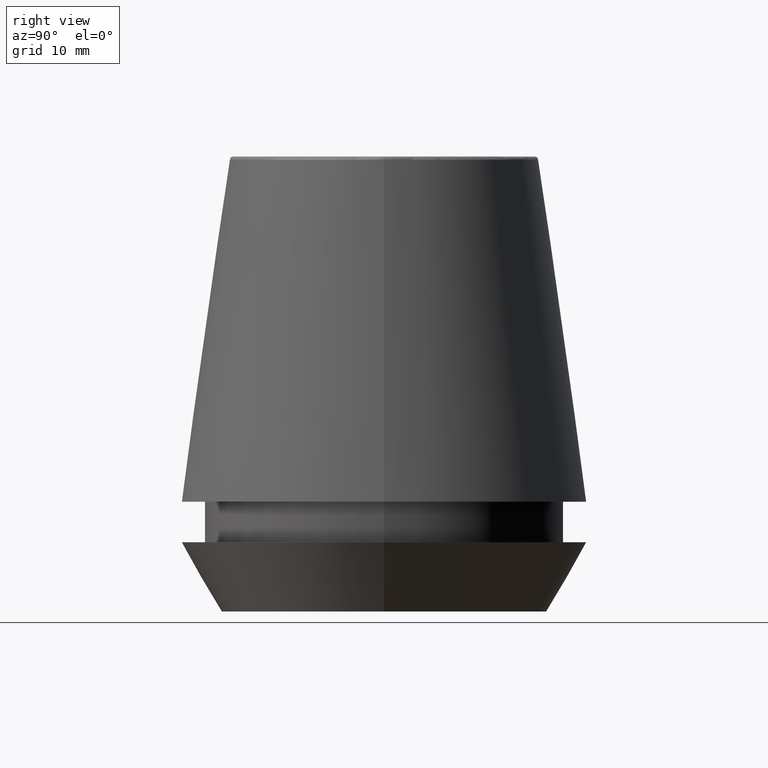
[diagram: clean part render]
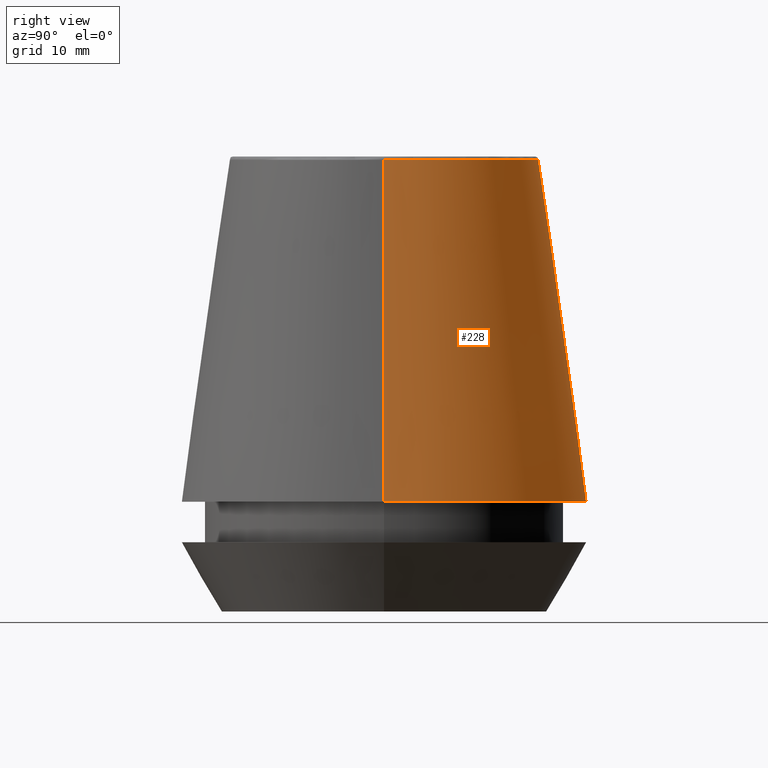
[diagram: same view with one face highlighted and labeled with its STEP entity id]
A machine part, right view. The second image highlights one B-rep face of the part: STEP entity #228.
In plain terms, the highlighted conical surface has half-angle 8 deg.
Its self-contained STEP definition (entity closure, byte-faithful):
#2 = CARTESIAN_POINT ( 'NONE',  ( -15.64384277279740400, 0.0000000000000000000, 45.65566924038402900 ) ) ;
#3 = ORIENTED_EDGE ( 'NONE', *, *, #72, .T. ) ;
#8 = CONICAL_SURFACE ( 'NONE', #11, 20.50032537154048700, 0.1396263401595396200 ) ;
#11 = AXIS2_PLACEMENT_3D ( 'NONE', #25, #240, #384 ) ;
#12 = VERTEX_POINT ( 'NONE', #321 ) ;
#25 = CARTESIAN_POINT ( 'NONE',  ( 0.0000000000000000000, 0.0000000000000000000, 11.09999999999999800 ) ) ;
#27 = DIRECTION ( 'NONE',  ( 1.000000000000000000, 0.0000000000000000000, 0.0000000000000000000 ) ) ;
#37 = AXIS2_PLACEMENT_3D ( 'NONE', #56, #244, #27 ) ;
#38 = CIRCLE ( 'NONE', #111, 20.50032537154048700 ) ;
#48 = EDGE_CURVE ( 'NONE', #232, #12, #282, .T. ) ;
#56 = CARTESIAN_POINT ( 'NONE',  ( 0.0000000000000000000, 0.0000000000000000000, 45.65566924038402900 ) ) ;
#61 = DIRECTION ( 'NONE',  ( -0.0000000000000000000, -0.0000000000000000000, 1.000000000000000000 ) ) ;
#72 = EDGE_CURVE ( 'NONE', #12, #211, #38, .T. ) ;
#111 = AXIS2_PLACEMENT_3D ( 'NONE', #287, #61, #252 ) ;
#123 = EDGE_LOOP ( 'NONE', ( #357, #266, #3, #298 ) ) ;
#127 = VERTEX_POINT ( 'NONE', #2 ) ;
#140 = DIRECTION ( 'NONE',  ( -0.1391731009600587200, 0.0000000000000000000, -0.9902680687415712500 ) ) ;
#144 = DIRECTION ( 'NONE',  ( 0.1391731009600587200, 1.704378926181473400E-017, -0.9902680687415712500 ) ) ;
#155 = CARTESIAN_POINT ( 'NONE',  ( 15.64384277279740400, 2.213191991290356800E-015, 45.65566924038402900 ) ) ;
#161 = EDGE_CURVE ( 'NONE', #127, #211, #348, .T. ) ;
#188 = EDGE_CURVE ( 'NONE', #232, #127, #367, .T. ) ;
#211 = VERTEX_POINT ( 'NONE', #362 ) ;
#228 = ADVANCED_FACE ( 'NONE', ( #314 ), #8, .T. ) ;
#232 = VERTEX_POINT ( 'NONE', #155 ) ;
#240 = DIRECTION ( 'NONE',  ( 0.0000000000000000000, 0.0000000000000000000, -1.000000000000000000 ) ) ;
#244 = DIRECTION ( 'NONE',  ( -0.0000000000000000000, -0.0000000000000000000, 1.000000000000000000 ) ) ;
#252 = DIRECTION ( 'NONE',  ( 1.000000000000000000, 0.0000000000000000000, 0.0000000000000000000 ) ) ;
#266 = ORIENTED_EDGE ( 'NONE', *, *, #48, .T. ) ;
#282 = LINE ( 'NONE', #366, #372 ) ;
#287 = CARTESIAN_POINT ( 'NONE',  ( 0.0000000000000000000, 0.0000000000000000000, 11.09999999999999800 ) ) ;
#298 = ORIENTED_EDGE ( 'NONE', *, *, #161, .F. ) ;
#314 = FACE_OUTER_BOUND ( 'NONE', #123, .T. ) ;
#321 = CARTESIAN_POINT ( 'NONE',  ( 20.50032537154048700, 2.510565784773633700E-015, 11.09999999999999800 ) ) ;
#348 = LINE ( 'NONE', #364, #370 ) ;
#357 = ORIENTED_EDGE ( 'NONE', *, *, #188, .F. ) ;
#362 = CARTESIAN_POINT ( 'NONE',  ( -20.50032537154048700, 0.0000000000000000000, 11.09999999999999800 ) ) ;
#364 = CARTESIAN_POINT ( 'NONE',  ( -20.50032537154048700, 0.0000000000000000000, 11.09999999999999800 ) ) ;
#366 = CARTESIAN_POINT ( 'NONE',  ( 20.50032537154048700, 2.510565784773633700E-015, 11.09999999999999800 ) ) ;
#367 = CIRCLE ( 'NONE', #37, 15.64384277279740400 ) ;
#370 = VECTOR ( 'NONE', #140, 1000.000000000000000 ) ;
#372 = VECTOR ( 'NONE', #144, 1000.000000000000000 ) ;
#384 = DIRECTION ( 'NONE',  ( -1.000000000000000000, 0.0000000000000000000, 0.0000000000000000000 ) ) ;